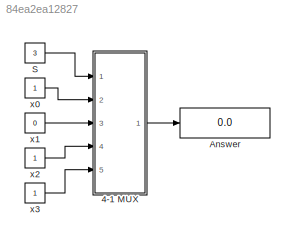
MODEL slx_84ea2ea12827
KIND model
CONFIG AbsTol = auto
CONFIG EnableMultiTasking = off
CONFIG FixedStep = 1
CONFIG MaxStep = auto
CONFIG MinStep = auto
CONFIG RelTol = 1e-3
CONFIG SampleTimeConstraint = Unconstrained
CONFIG Solver = FixedStepDiscrete
CONFIG SolverName = FixedStepDiscrete
CONFIG StartTime = 0.0
CONFIG StopTime = 10.0
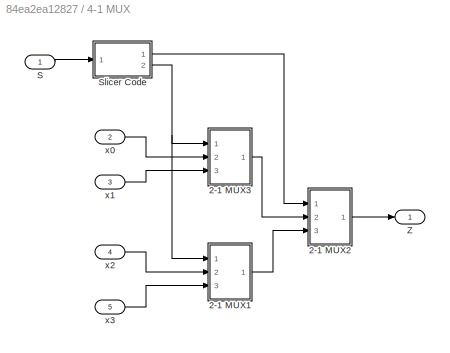
BLOCK [SubSystem] 4-1 MUX
  Ports = [5, 1]
  RequestExecContextInheritance = off
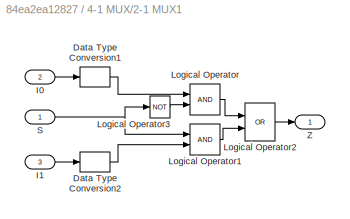
BLOCK [SubSystem] 4-1 MUX/2-1 MUX1
  Ports = [3, 1]
  RequestExecContextInheritance = off
BLOCK [DataTypeConversion] 4-1 MUX/2-1 MUX1/Data Type Conversion1
  OutDataTypeStr = boolean
  RndMeth = Floor
  SaturateOnIntegerOverflow = off
BLOCK [DataTypeConversion] 4-1 MUX/2-1 MUX1/Data Type Conversion2
  OutDataTypeStr = boolean
  RndMeth = Floor
  SaturateOnIntegerOverflow = off
BLOCK [Inport] 4-1 MUX/2-1 MUX1/I0
  IconDisplay = Port number
  Port = 2
BLOCK [Inport] 4-1 MUX/2-1 MUX1/I1
  IconDisplay = Port number
  Port = 3
BLOCK [Logic] 4-1 MUX/2-1 MUX1/Logical Operator
  AllPortsSameDT = off
  OutDataTypeStr = boolean
  Ports = [2, 1]
BLOCK [Logic] 4-1 MUX/2-1 MUX1/Logical Operator1
  AllPortsSameDT = off
  OutDataTypeStr = boolean
  Ports = [2, 1]
BLOCK [Logic] 4-1 MUX/2-1 MUX1/Logical Operator2
  AllPortsSameDT = off
  Operator = OR
  OutDataTypeStr = boolean
  Ports = [2, 1]
BLOCK [Logic] 4-1 MUX/2-1 MUX1/Logical Operator3
  AllPortsSameDT = off
  Operator = NOT
  OutDataTypeStr = boolean
  Ports = [1, 1]
BLOCK [Inport] 4-1 MUX/2-1 MUX1/S
  IconDisplay = Port number
BLOCK [Outport] 4-1 MUX/2-1 MUX1/Z
  IconDisplay = Port number
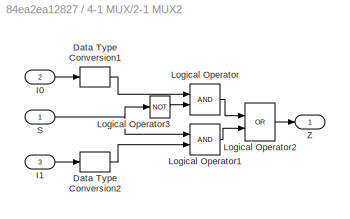
BLOCK [SubSystem] 4-1 MUX/2-1 MUX2
  Ports = [3, 1]
  RequestExecContextInheritance = off
BLOCK [DataTypeConversion] 4-1 MUX/2-1 MUX2/Data Type Conversion1
  OutDataTypeStr = boolean
  RndMeth = Floor
  SaturateOnIntegerOverflow = off
BLOCK [DataTypeConversion] 4-1 MUX/2-1 MUX2/Data Type Conversion2
  OutDataTypeStr = boolean
  RndMeth = Floor
  SaturateOnIntegerOverflow = off
BLOCK [Inport] 4-1 MUX/2-1 MUX2/I0
  IconDisplay = Port number
  Port = 2
BLOCK [Inport] 4-1 MUX/2-1 MUX2/I1
  IconDisplay = Port number
  Port = 3
BLOCK [Logic] 4-1 MUX/2-1 MUX2/Logical Operator
  AllPortsSameDT = off
  OutDataTypeStr = boolean
  Ports = [2, 1]
BLOCK [Logic] 4-1 MUX/2-1 MUX2/Logical Operator1
  AllPortsSameDT = off
  OutDataTypeStr = boolean
  Ports = [2, 1]
BLOCK [Logic] 4-1 MUX/2-1 MUX2/Logical Operator2
  AllPortsSameDT = off
  Operator = OR
  OutDataTypeStr = boolean
  Ports = [2, 1]
BLOCK [Logic] 4-1 MUX/2-1 MUX2/Logical Operator3
  AllPortsSameDT = off
  Operator = NOT
  OutDataTypeStr = boolean
  Ports = [1, 1]
BLOCK [Inport] 4-1 MUX/2-1 MUX2/S
  IconDisplay = Port number
BLOCK [Outport] 4-1 MUX/2-1 MUX2/Z
  IconDisplay = Port number
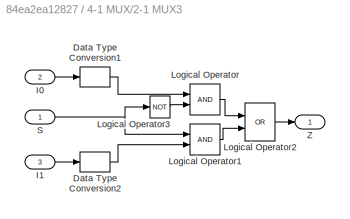
BLOCK [SubSystem] 4-1 MUX/2-1 MUX3
  Ports = [3, 1]
  RequestExecContextInheritance = off
BLOCK [DataTypeConversion] 4-1 MUX/2-1 MUX3/Data Type Conversion1
  OutDataTypeStr = boolean
  RndMeth = Floor
  SaturateOnIntegerOverflow = off
BLOCK [DataTypeConversion] 4-1 MUX/2-1 MUX3/Data Type Conversion2
  OutDataTypeStr = boolean
  RndMeth = Floor
  SaturateOnIntegerOverflow = off
BLOCK [Inport] 4-1 MUX/2-1 MUX3/I0
  IconDisplay = Port number
  Port = 2
BLOCK [Inport] 4-1 MUX/2-1 MUX3/I1
  IconDisplay = Port number
  Port = 3
BLOCK [Logic] 4-1 MUX/2-1 MUX3/Logical Operator
  AllPortsSameDT = off
  OutDataTypeStr = boolean
  Ports = [2, 1]
BLOCK [Logic] 4-1 MUX/2-1 MUX3/Logical Operator1
  AllPortsSameDT = off
  OutDataTypeStr = boolean
  Ports = [2, 1]
BLOCK [Logic] 4-1 MUX/2-1 MUX3/Logical Operator2
  AllPortsSameDT = off
  Operator = OR
  OutDataTypeStr = boolean
  Ports = [2, 1]
BLOCK [Logic] 4-1 MUX/2-1 MUX3/Logical Operator3
  AllPortsSameDT = off
  Operator = NOT
  OutDataTypeStr = boolean
  Ports = [1, 1]
BLOCK [Inport] 4-1 MUX/2-1 MUX3/S
  IconDisplay = Port number
BLOCK [Outport] 4-1 MUX/2-1 MUX3/Z
  IconDisplay = Port number
BLOCK [Inport] 4-1 MUX/S
  IconDisplay = Port number
  OutDataTypeStr = uint8
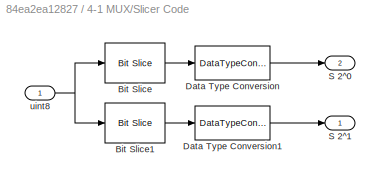
BLOCK [SubSystem] 4-1 MUX/Slicer Code
  Ports = [1, 2]
  RequestExecContextInheritance = off
BLOCK [Reference] 4-1 MUX/Slicer Code/Bit Slice  REF=hdlsllib/Logic and Bit
Operations/Bit Slice
  Ports = [1, 1]
  SourceBlock = hdlsllib/Logic and Bit\nOperations/Bit Slice
  SourceProductBaseCode = HD
  SourceProductName = HDL Coder
  SourceType = Bit Slice
BLOCK [Reference] 4-1 MUX/Slicer Code/Bit Slice1  REF=hdlsllib/Logic and Bit
Operations/Bit Slice
  Ports = [1, 1]
  SourceBlock = hdlsllib/Logic and Bit\nOperations/Bit Slice
  SourceProductBaseCode = HD
  SourceProductName = HDL Coder
  SourceType = Bit Slice
BLOCK [DataTypeConversion] 4-1 MUX/Slicer Code/Data Type Conversion
  OutDataTypeStr = boolean
  RndMeth = Floor
  SaturateOnIntegerOverflow = off
BLOCK [DataTypeConversion] 4-1 MUX/Slicer Code/Data Type Conversion1
  OutDataTypeStr = boolean
  RndMeth = Floor
  SaturateOnIntegerOverflow = off
BLOCK [Outport] 4-1 MUX/Slicer Code/S 2^0 
  IconDisplay = Port number
  Port = 2
BLOCK [Outport] 4-1 MUX/Slicer Code/S 2^1
  IconDisplay = Port number
BLOCK [Inport] 4-1 MUX/Slicer Code/uint8
  IconDisplay = Port number
  OutDataTypeStr = uint8
  SampleTime = 1
BLOCK [Outport] 4-1 MUX/Z
  IconDisplay = Port number
BLOCK [Inport] 4-1 MUX/x0
  IconDisplay = Port number
  OutDataTypeStr = uint8
  Port = 2
BLOCK [Inport] 4-1 MUX/x1
  IconDisplay = Port number
  OutDataTypeStr = uint8
  Port = 3
BLOCK [Inport] 4-1 MUX/x2
  IconDisplay = Port number
  OutDataTypeStr = uint8
  Port = 4
BLOCK [Inport] 4-1 MUX/x3
  IconDisplay = Port number
  OutDataTypeStr = uint8
  Port = 5
BLOCK [Display] Answer
  Decimation = 1
  Ports = [1]
BLOCK [Constant] S
  OutDataTypeStr = uint8
  SampleTime = 1
  Value = 3
BLOCK [Constant] x0
  OutDataTypeStr = uint8
  SampleTime = 1
BLOCK [Constant] x1
  OutDataTypeStr = uint8
  SampleTime = 1
  Value = 0
BLOCK [Constant] x2
  OutDataTypeStr = uint8
  SampleTime = 1
BLOCK [Constant] x3
  OutDataTypeStr = uint8
  SampleTime = 1
LINE 4-1 MUX/2-1 MUX1/Data Type Conversion1:1 -> 4-1 MUX/2-1 MUX1/Logical Operator:1
LINE 4-1 MUX/2-1 MUX1/Data Type Conversion2:1 -> 4-1 MUX/2-1 MUX1/Logical Operator1:2
LINE 4-1 MUX/2-1 MUX1/I0:1 -> 4-1 MUX/2-1 MUX1/Data Type Conversion1:1
LINE 4-1 MUX/2-1 MUX1/I1:1 -> 4-1 MUX/2-1 MUX1/Data Type Conversion2:1
LINE 4-1 MUX/2-1 MUX1/Logical Operator1:1 -> 4-1 MUX/2-1 MUX1/Logical Operator2:2
LINE 4-1 MUX/2-1 MUX1/Logical Operator2:1 -> 4-1 MUX/2-1 MUX1/Z:1
LINE 4-1 MUX/2-1 MUX1/Logical Operator3:1 -> 4-1 MUX/2-1 MUX1/Logical Operator:2
LINE 4-1 MUX/2-1 MUX1/Logical Operator:1 -> 4-1 MUX/2-1 MUX1/Logical Operator2:1
NET 4-1 MUX/2-1 MUX1/S:1 -> 4-1 MUX/2-1 MUX1/Logical Operator1:1, 4-1 MUX/2-1 MUX1/Logical Operator3:1
LINE 4-1 MUX/2-1 MUX1:1 -> 4-1 MUX/2-1 MUX2:3
LINE 4-1 MUX/2-1 MUX2/Data Type Conversion1:1 -> 4-1 MUX/2-1 MUX2/Logical Operator:1
LINE 4-1 MUX/2-1 MUX2/Data Type Conversion2:1 -> 4-1 MUX/2-1 MUX2/Logical Operator1:2
LINE 4-1 MUX/2-1 MUX2/I0:1 -> 4-1 MUX/2-1 MUX2/Data Type Conversion1:1
LINE 4-1 MUX/2-1 MUX2/I1:1 -> 4-1 MUX/2-1 MUX2/Data Type Conversion2:1
LINE 4-1 MUX/2-1 MUX2/Logical Operator1:1 -> 4-1 MUX/2-1 MUX2/Logical Operator2:2
LINE 4-1 MUX/2-1 MUX2/Logical Operator2:1 -> 4-1 MUX/2-1 MUX2/Z:1
LINE 4-1 MUX/2-1 MUX2/Logical Operator3:1 -> 4-1 MUX/2-1 MUX2/Logical Operator:2
LINE 4-1 MUX/2-1 MUX2/Logical Operator:1 -> 4-1 MUX/2-1 MUX2/Logical Operator2:1
NET 4-1 MUX/2-1 MUX2/S:1 -> 4-1 MUX/2-1 MUX2/Logical Operator1:1, 4-1 MUX/2-1 MUX2/Logical Operator3:1
LINE 4-1 MUX/2-1 MUX2:1 -> 4-1 MUX/Z:1
LINE 4-1 MUX/2-1 MUX3/Data Type Conversion1:1 -> 4-1 MUX/2-1 MUX3/Logical Operator:1
LINE 4-1 MUX/2-1 MUX3/Data Type Conversion2:1 -> 4-1 MUX/2-1 MUX3/Logical Operator1:2
LINE 4-1 MUX/2-1 MUX3/I0:1 -> 4-1 MUX/2-1 MUX3/Data Type Conversion1:1
LINE 4-1 MUX/2-1 MUX3/I1:1 -> 4-1 MUX/2-1 MUX3/Data Type Conversion2:1
LINE 4-1 MUX/2-1 MUX3/Logical Operator1:1 -> 4-1 MUX/2-1 MUX3/Logical Operator2:2
LINE 4-1 MUX/2-1 MUX3/Logical Operator2:1 -> 4-1 MUX/2-1 MUX3/Z:1
LINE 4-1 MUX/2-1 MUX3/Logical Operator3:1 -> 4-1 MUX/2-1 MUX3/Logical Operator:2
LINE 4-1 MUX/2-1 MUX3/Logical Operator:1 -> 4-1 MUX/2-1 MUX3/Logical Operator2:1
NET 4-1 MUX/2-1 MUX3/S:1 -> 4-1 MUX/2-1 MUX3/Logical Operator1:1, 4-1 MUX/2-1 MUX3/Logical Operator3:1
LINE 4-1 MUX/2-1 MUX3:1 -> 4-1 MUX/2-1 MUX2:2
LINE 4-1 MUX/S:1 -> 4-1 MUX/Slicer Code:1
LINE 4-1 MUX/Slicer Code/Bit Slice1:1 -> 4-1 MUX/Slicer Code/Data Type Conversion1:1
LINE 4-1 MUX/Slicer Code/Bit Slice:1 -> 4-1 MUX/Slicer Code/Data Type Conversion:1
LINE 4-1 MUX/Slicer Code/Data Type Conversion1:1 -> 4-1 MUX/Slicer Code/S 2^1:1
LINE 4-1 MUX/Slicer Code/Data Type Conversion:1 -> 4-1 MUX/Slicer Code/S 2^0 :1
NET 4-1 MUX/Slicer Code/uint8:1 -> 4-1 MUX/Slicer Code/Bit Slice1:1, 4-1 MUX/Slicer Code/Bit Slice:1
LINE 4-1 MUX/Slicer Code:1 -> 4-1 MUX/2-1 MUX2:1
NET 4-1 MUX/Slicer Code:2 -> 4-1 MUX/2-1 MUX1:1, 4-1 MUX/2-1 MUX3:1
LINE 4-1 MUX/x0:1 -> 4-1 MUX/2-1 MUX3:2
LINE 4-1 MUX/x1:1 -> 4-1 MUX/2-1 MUX3:3
LINE 4-1 MUX/x2:1 -> 4-1 MUX/2-1 MUX1:2
LINE 4-1 MUX/x3:1 -> 4-1 MUX/2-1 MUX1:3
LINE 4-1 MUX:1 -> Answer:1
LINE S:1 -> 4-1 MUX:1
LINE x0:1 -> 4-1 MUX:2
LINE x1:1 -> 4-1 MUX:3
LINE x2:1 -> 4-1 MUX:4
LINE x3:1 -> 4-1 MUX:5
note: NET lines group one-source signal fan-out (src -> all destinations, sorted); 1:1 wires keep LINE
